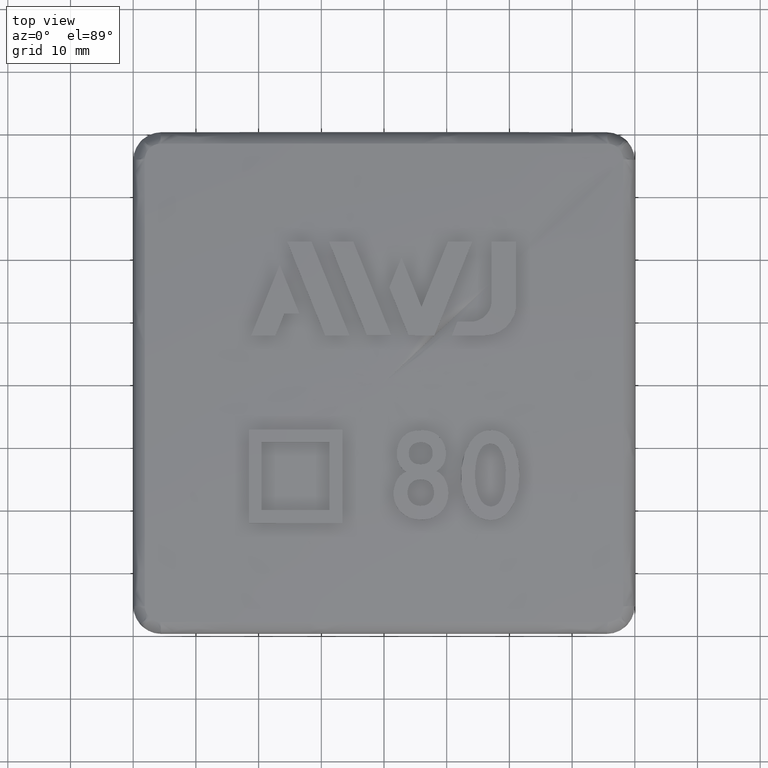
[diagram: clean part render]
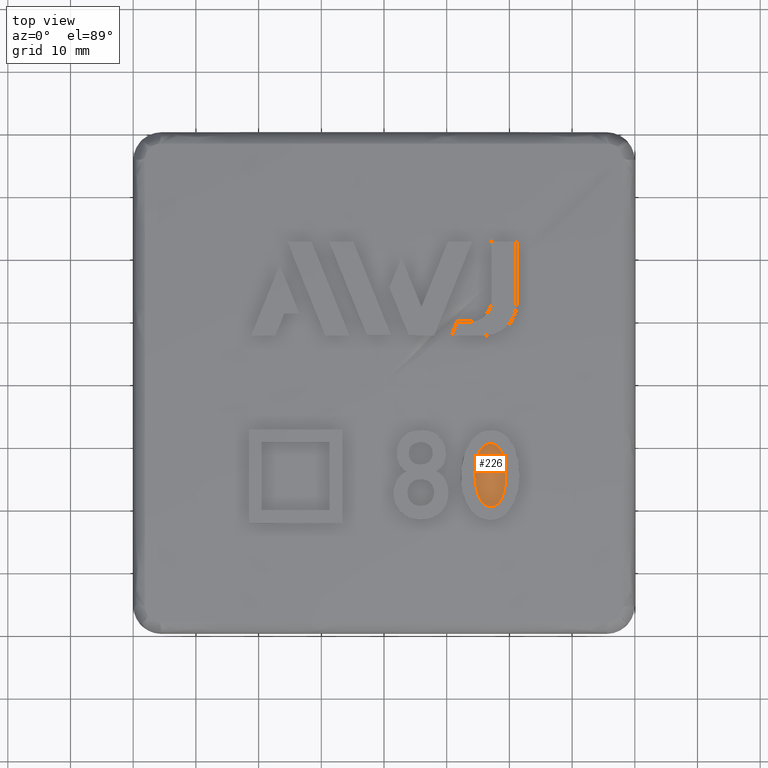
[diagram: same view with one face highlighted and labeled with its STEP entity id]
A machine part, top view. The second image highlights one B-rep face of the part: STEP entity #226.
In plain terms, the highlighted face is a freeform B-spline surface patch.
Its self-contained STEP definition (entity closure, byte-faithful):
#226 = ADVANCED_FACE( '', ( #652 ), #653, .T. );
#652 = FACE_OUTER_BOUND( '', #3030, .T. );
#653 = ( B_SPLINE_SURFACE( 3, 3, ( ( #3032, #3033, #3034, #3035 ), ( #3036, #3037, #3038, #3039 ), ( #3040, #3041, #3042, #3043 ), ( #3044, #3045, #3046, #3047 ) ), .UNSPECIFIED., .F., .F., .F. )B_SPLINE_SURFACE_WITH_KNOTS( ( 4, 4 ), ( 4, 4 ), ( 3.64846734333762, 4.02908225660088 ), ( -1.53346307522551, -1.51761189969007 ), .UNSPECIFIED. )RATIONAL_B_SPLINE_SURFACE( ( ( 1.00000000000000, 0.987964081856172, 0.987964081856172, 1.00000000000000 ), ( 0.999979061795782, 0.987943395662466, 0.987943395662466, 0.999979061795782 ), ( 0.999979061795782, 0.987943395662466, 0.987943395662466, 0.999979061795782 ), ( 1.00000000000000, 0.987964081856172, 0.987964081856172, 1.00000000000000 ) ) )BOUNDED_SURFACE(  )REPRESENTATION_ITEM( '' )GEOMETRIC_REPRESENTATION_ITEM(  )SURFACE(  ) );
#3030 = EDGE_LOOP( '', ( #4753 ) );
#3032 = CARTESIAN_POINT( '', ( 23.2464189134804, -12.9078693016239, 27.2930209470087 ) );
#3033 = CARTESIAN_POINT( '', ( 21.5988131255043, -15.8751238853645, 27.2930209470087 ) );
#3034 = CARTESIAN_POINT( '', ( 19.4196647303005, -18.4771455741640, 27.2930209470087 ) );
#3035 = CARTESIAN_POINT( '', ( 16.7876578829929, -20.6199812078578, 27.2930209470087 ) );
#3036 = CARTESIAN_POINT( '', ( 20.9399700712304, -11.6271842930017, 27.4334621361839 ) );
#3037 = CARTESIAN_POINT( '', ( 19.4558354172946, -14.3000356430744, 27.4334621361839 ) );
#3038 = CARTESIAN_POINT( '', ( 17.4928964224253, -16.6438915501258, 27.4334621361839 ) );
#3039 = CARTESIAN_POINT( '', ( 15.1220304058134, -18.5741206406416, 27.4334621361839 ) );
#3040 = CARTESIAN_POINT( '', ( 18.6326205514716, -10.3459991717553, 27.5529902065597 ) );
#3041 = CARTESIAN_POINT( '', ( 17.3120208677084, -12.7243323225183, 27.5529902065597 ) );
#3042 = CARTESIAN_POINT( '', ( 15.5653757038103, -14.8099216330501, 27.5529902065597 ) );
#3043 = CARTESIAN_POINT( '', ( 13.4557524944342, -16.5274611566813, 27.5529902065597 ) );
#3044 = CARTESIAN_POINT( '', ( 16.3245152894701, -9.06439441503175, 27.6515976500267 ) );
#3045 = CARTESIAN_POINT( '', ( 15.1675041396263, -11.1481129008900, 27.6515976500267 ) );
#3046 = CARTESIAN_POINT( '', ( 13.6372236509228, -12.9753510230469, 27.6515976500267 ) );
#3047 = CARTESIAN_POINT( '', ( 11.7889288154569, -14.4801313160997, 27.6515976500267 ) );
#4753 = ORIENTED_EDGE( '', *, *, #6071, .T. );
#6071 = EDGE_CURVE( '', #7081, #7081, #7082, .T. );
#7081 = VERTEX_POINT( '', #10010 );
#7082 = B_SPLINE_CURVE_WITH_KNOTS( '', 3, ( #10011, #10012, #10013, #10014, #10015, #10016, #10017, #10018, #10019, #10020, #10021, #10022, #10023, #10024, #10025, #10026, #10027, #10028, #10029, #10030, #10031, #10032, #10033, #10034, #10035, #10036, #10037, #10038, #10039, #10040, #10041, #10042, #10043, #10044, #10045, #10046, #10047, #10048, #10049, #10050, #10051, #10052, #10053, #10054, #10055, #10056, #10057, #10058, #10059, #10060, #10061, #10062, #10063, #10064, #10065, #10066, #10067, #10068, #10069, #10070, #10071, #10072, #10073, #10074, #10075, #10076, #10077, #10078 ), .UNSPECIFIED., .T., .F., ( 2, 2, 2, 2, 2, 2, 2, 2, 2, 2, 2, 2, 2, 2, 2, 2, 2, 2, 2, 2, 2, 2, 2, 2, 2, 2, 2, 2, 2, 2, 2, 2, 2, 2, 2, 2 ), ( -0.00152996101934949, 0.000000000000000, 0.000764980509674715, 0.00152996101934943, 0.00229494152902414, 0.00267743178386151, 0.00305992203869887, 0.00344241229353623, 0.00382490254837359, 0.00458988305804833, 0.00535486356772307, 0.00611984407739781, 0.00688482458707254, 0.00764980509674728, 0.00917976611609677, 0.0107097271354463, 0.0114747076451210, 0.0122396881547957, 0.0130046686644705, 0.0137696491741452, 0.0141521394289826, 0.0145346296838200, 0.0149171199386574, 0.0152996101934947, 0.0156821004483321, 0.0160645907031695, 0.0164470809580068, 0.0168295712128442, 0.0172120614676816, 0.0175945517225190, 0.0183595322321937, 0.0198894932515432, 0.0214194542708927, 0.0229494152902422, 0.0244793763095917, 0.0252443568192664 ), .UNSPECIFIED. );
#10010 = CARTESIAN_POINT( '', ( 14.9891832386363, -17.9293181818182, 27.4540315361154 ) );
#10011 = CARTESIAN_POINT( '', ( 14.8088344253937, -17.4483880131713, 27.4766986925309 ) );
#10012 = CARTESIAN_POINT( '', ( 15.0793576452576, -18.1697832661417, 27.4426979579076 ) );
#10013 = CARTESIAN_POINT( '', ( 15.1837402138048, -18.4027246357872, 27.4310105254188 ) );
#10014 = CARTESIAN_POINT( '', ( 15.4372844309001, -18.8449079211577, 27.4067582894554 ) );
#10015 = CARTESIAN_POINT( '', ( 15.5889202842364, -19.0569238096640, 27.3940080907891 ) );
#10016 = CARTESIAN_POINT( '', ( 15.9510202057996, -19.4177232146889, 27.3686846527392 ) );
#10017 = CARTESIAN_POINT( '', ( 16.1667697650796, -19.5681176018235, 27.3558800814333 ) );
#10018 = CARTESIAN_POINT( '', ( 16.5208533893052, -19.7104102667858, 27.3386524501962 ) );
#10019 = CARTESIAN_POINT( '', ( 16.6463884056648, -19.7452060733780, 27.3331110228439 ) );
#10020 = CARTESIAN_POINT( '', ( 16.8999776916135, -19.7873720132084, 27.3229273191975 ) );
#10021 = CARTESIAN_POINT( '', ( 17.0275803580804, -19.7966056680515, 27.3182280293145 ) );
#10022 = CARTESIAN_POINT( '', ( 17.2848608986236, -19.7846557913219, 27.3098648017572 ) );
#10023 = CARTESIAN_POINT( '', ( 17.4135828871553, -19.7629021623058, 27.3062548520382 ) );
#10024 = CARTESIAN_POINT( '', ( 17.6584564039309, -19.6871626509374, 27.3006488715252 ) );
#10025 = CARTESIAN_POINT( '', ( 17.7776044500855, -19.6321000958045, 27.2985897500425 ) );
#10026 = CARTESIAN_POINT( '', ( 18.1055355253969, -19.4288507266803, 27.2948073879924 ) );
#10027 = CARTESIAN_POINT( '', ( 18.2901450205539, -19.2412079823629, 27.2953444044172 ) );
#10028 = CARTESIAN_POINT( '', ( 18.5955002448849, -18.8306503763492, 27.2997163715275 ) );
#10029 = CARTESIAN_POINT( '', ( 18.7219835061170, -18.6030543226447, 27.3035197383227 ) );
#10030 = CARTESIAN_POINT( '', ( 18.9317134781753, -18.1374585428705, 27.3127381249210 ) );
#10031 = CARTESIAN_POINT( '', ( 19.0158979405696, -17.8970087883581, 27.3182135021187 ) );
#10032 = CARTESIAN_POINT( '', ( 19.1563318683706, -17.4057704232778, 27.3302065231355 ) );
#10033 = CARTESIAN_POINT( '', ( 19.2124592704500, -17.1542506014343, 27.3367515506213 ) );
#10034 = CARTESIAN_POINT( '', ( 19.3028035490389, -16.6520804853183, 27.3502609357564 ) );
#10035 = CARTESIAN_POINT( '', ( 19.3373332711156, -16.4002752253097, 27.3572550705325 ) );
#10036 = CARTESIAN_POINT( '', ( 19.4176233870965, -15.6432784665111, 27.3786121785330 ) );
#10037 = CARTESIAN_POINT( '', ( 19.4432687831769, -15.1367198167449, 27.3932205568435 ) );
#10038 = CARTESIAN_POINT( '', ( 19.4380557625192, -14.1197642017259, 27.4231990063054 ) );
#10039 = CARTESIAN_POINT( '', ( 19.4046548546008, -13.6067050716323, 27.4387344894657 ) );
#10040 = CARTESIAN_POINT( '', ( 19.2916719432681, -12.8501003472846, 27.4629448574868 ) );
#10041 = CARTESIAN_POINT( '', ( 19.2435229188763, -12.5996311184995, 27.4711802535543 ) );
#10042 = CARTESIAN_POINT( '', ( 19.1224389092478, -12.1027888259170, 27.4881091947411 ) );
#10043 = CARTESIAN_POINT( '', ( 19.0494010650992, -11.8568297551600, 27.4967944764632 ) );
#10044 = CARTESIAN_POINT( '', ( 18.8776688317315, -11.3783903772207, 27.5144339641575 ) );
#10045 = CARTESIAN_POINT( '', ( 18.7790898550175, -11.1447436923840, 27.5234132609496 ) );
#10046 = CARTESIAN_POINT( '', ( 18.5386533673821, -10.6964331912943, 27.5421863311163 ) );
#10047 = CARTESIAN_POINT( '', ( 18.3943717190010, -10.4780441674204, 27.5521450664521 ) );
#10048 = CARTESIAN_POINT( '', ( 18.1290388309904, -10.1985093362253, 27.5675723893698 ) );
#10049 = CARTESIAN_POINT( '', ( 18.0309652230628, -10.1122586165247, 27.5728726780456 ) );
#10050 = CARTESIAN_POINT( '', ( 17.8183719543565, -9.96636043719989, 27.5834272278968 ) );
#10051 = CARTESIAN_POINT( '', ( 17.7046147600972, -9.90688128287772, 27.5886523391637 ) );
#10052 = CARTESIAN_POINT( '', ( 17.4593914181248, -9.81989757312973, 27.5989945744577 ) );
#10053 = CARTESIAN_POINT( '', ( 17.3326174672194, -9.79670975592812, 27.6038612984219 ) );
#10054 = CARTESIAN_POINT( '', ( 17.0761396657856, -9.77054000271759, 27.6132010628807 ) );
#10055 = CARTESIAN_POINT( '', ( 16.9461417341292, -9.76721836999813, 27.6176897875727 ) );
#10056 = CARTESIAN_POINT( '', ( 16.6902747669807, -9.78552524805184, 27.6259403015377 ) );
#10057 = CARTESIAN_POINT( '', ( 16.5624663678494, -9.80730984639445, 27.6297645906098 ) );
#10058 = CARTESIAN_POINT( '', ( 16.3143889348069, -9.88029931590376, 27.6364850455745 ) );
#10059 = CARTESIAN_POINT( '', ( 16.1965762079162, -9.93060165117057, 27.6393191254351 ) );
#10060 = CARTESIAN_POINT( '', ( 15.9735171315061, -10.0590751042556, 27.6439276929315 ) );
#10061 = CARTESIAN_POINT( '', ( 15.8688057606740, -10.1374272552869, 27.6456797532053 ) );
#10062 = CARTESIAN_POINT( '', ( 15.6802736626709, -10.3119198939419, 27.6480599265129 ) );
#10063 = CARTESIAN_POINT( '', ( 15.5943459890421, -10.4097114366126, 27.6487211053794 ) );
#10064 = CARTESIAN_POINT( '', ( 15.4406309214501, -10.6166205361093, 27.6491411812292 ) );
#10065 = CARTESIAN_POINT( '', ( 15.3734874032197, -10.7255708174210, 27.6488846157262 ) );
#10066 = CARTESIAN_POINT( '', ( 15.2498828553001, -10.9495148402237, 27.6478156135367 ) );
#10067 = CARTESIAN_POINT( '', ( 15.1927085419625, -11.0641050226198, 27.6470335965517 ) );
#10068 = CARTESIAN_POINT( '', ( 15.0336769267730, -11.4149422006253, 27.6440029797533 ) );
#10069 = CARTESIAN_POINT( '', ( 14.9451946135056, -11.6564192735310, 27.6410826806486 ) );
#10070 = CARTESIAN_POINT( '', ( 14.7236319816852, -12.3871802839956, 27.6302782432374 ) );
#10071 = CARTESIAN_POINT( '', ( 14.6312905049821, -12.8876939820234, 27.6203393786646 ) );
#10072 = CARTESIAN_POINT( '', ( 14.5157252523718, -13.9053633180586, 27.5964345936867 ) );
#10073 = CARTESIAN_POINT( '', ( 14.4913829759304, -14.4142604507014, 27.5827199802605 ) );
#10074 = CARTESIAN_POINT( '', ( 14.4975343265584, -15.4295666253841, 27.5522292591971 ) );
#10075 = CARTESIAN_POINT( '', ( 14.5312722607938, -15.9363715776081, 27.5353500465582 ) );
#10076 = CARTESIAN_POINT( '', ( 14.6868423765239, -16.9475643985396, 27.4975331297683 ) );
#10077 = CARTESIAN_POINT( '', ( 14.8088344253937, -17.4483880131713, 27.4766986925309 ) );
#10078 = CARTESIAN_POINT( '', ( 15.0793576452576, -18.1697832661417, 27.4426979579076 ) );